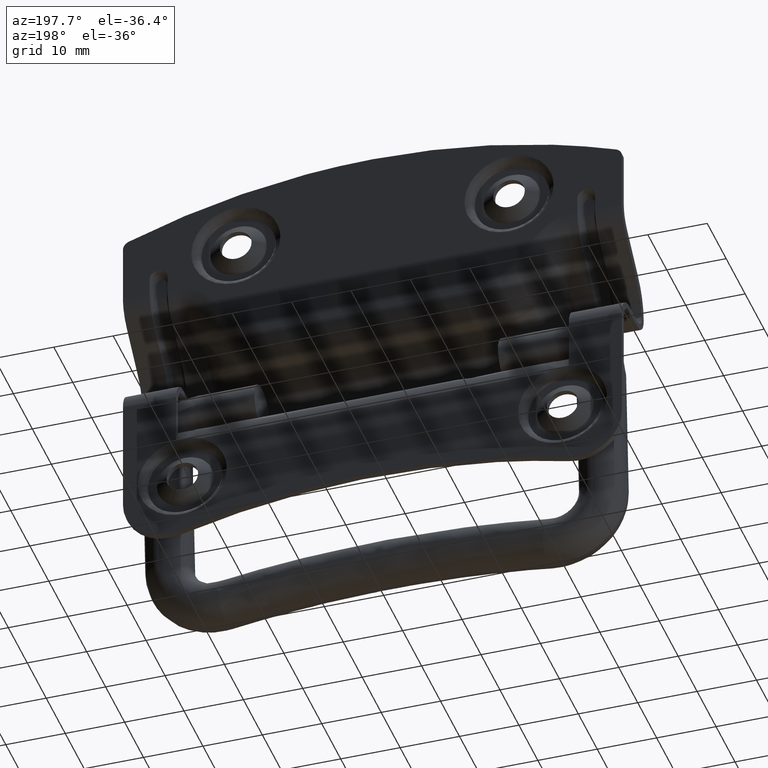
[diagram: clean part render]
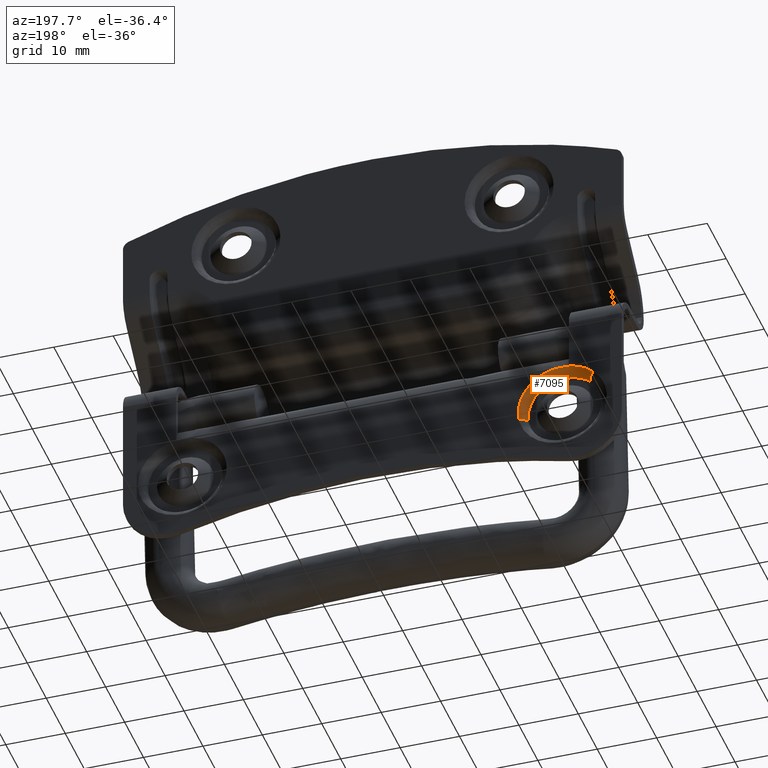
[diagram: same view with one face highlighted and labeled with its STEP entity id]
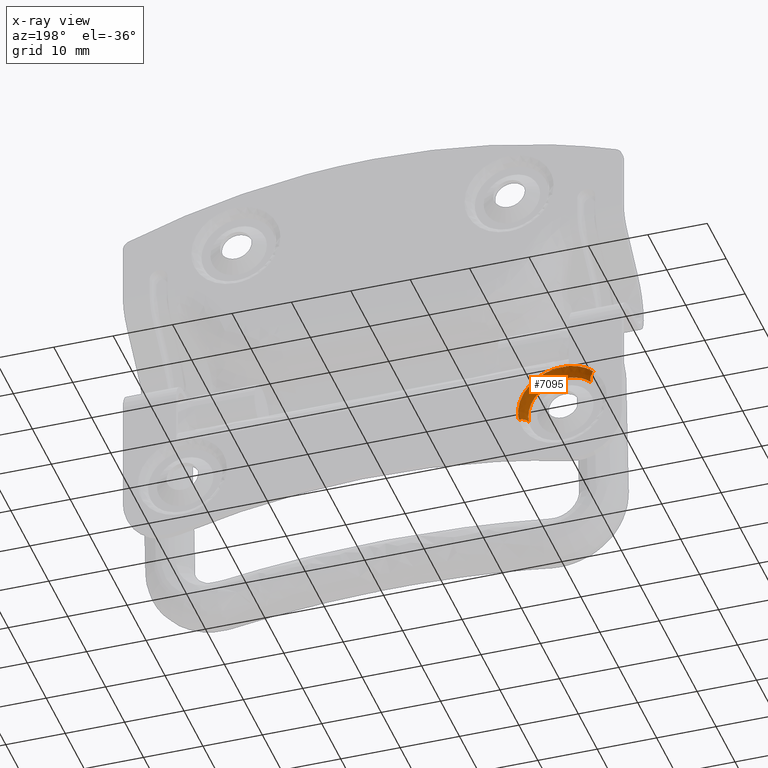
[diagram: x-ray of the same camera — body ghosted, the highlighted face saturated]
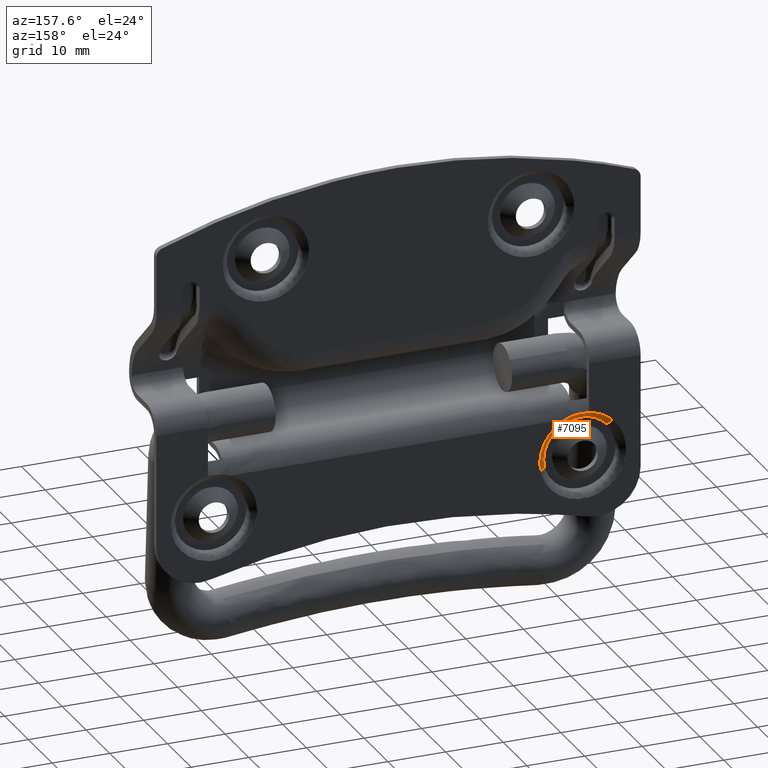
[diagram: same view with one face highlighted and labeled with its STEP entity id]
A machine part, auxiliary view. The second image highlights one B-rep face of the part: STEP entity #7095.
The next image is the same camera in x-ray: the body ghosted, the highlighted face saturated — about 0% of this face is hidden behind the body in this view.
A second angle (auxiliary view) of the same face is appended — the face is thin or edge-on in the first view.
In plain terms, the highlighted face is a freeform B-spline surface patch.
Its self-contained STEP definition (entity closure, byte-faithful):
#6912=CARTESIAN_POINT('',(-24.632845621366091,5.914919945475825,-16.405359859550099));
#6913=VERTEX_POINT('',#6912);
#6929=CARTESIAN_POINT('',(-37.178915370767783,5.914919945315424,-9.575164929543892));
#6930=VERTEX_POINT('',#6929);
#6946=CARTESIAN_POINT('',(-36.315762810485502,4.435900001354776,-10.479304106265239));
#6947=VERTEX_POINT('',#6946);
#6948=CARTESIAN_POINT('',(-36.315762810485502,4.435900001354776,-10.479304106265239));
#6949=CARTESIAN_POINT('',(-36.315720168328667,4.589391813209155,-10.479348773275870));
#6950=CARTESIAN_POINT('',(-36.350901108970362,4.918287471114459,-10.442497273121941));
#6951=CARTESIAN_POINT('',(-36.514856710660091,5.372036648385160,-10.270756274425070));
#6952=CARTESIAN_POINT('',(-36.799451008683953,5.746326690615313,-9.972648076460184));
#6953=CARTESIAN_POINT('',(-37.044499772226857,5.882219675471842,-9.715963224301136));
#6954=CARTESIAN_POINT('',(-37.178915370767783,5.914919945315424,-9.575164929543892));
#6955=B_SPLINE_CURVE_WITH_KNOTS('',3,(#6948,#6949,#6950,#6951,#6952,#6953,#6954),.UNSPECIFIED.,.F.,.U.,(4,1,1,1,4),(0.000000189239142,0.460510338932862,0.986811992729496,1.513105706225366,2.105190923824322),.UNSPECIFIED.);
#6956=EDGE_CURVE('',#6947,#6930,#6955,.T.);
#6977=CARTESIAN_POINT('',(-25.860704682956360,4.435900001323768,-16.171133216216671));
#6978=VERTEX_POINT('',#6977);
#6990=CARTESIAN_POINT('',(-25.860704682956360,4.435900001323768,-16.171133216216671));
#6991=CARTESIAN_POINT('',(-25.860765646050272,4.589391271219705,-16.171121586877540));
#6992=CARTESIAN_POINT('',(-25.810718736969751,4.918289026658638,-16.180668545380129));
#6993=CARTESIAN_POINT('',(-25.577487979155890,5.372037079751955,-16.225159691981609));
#6994=CARTESIAN_POINT('',(-25.172645010150131,5.746324193683385,-16.302387618769011));
#6995=CARTESIAN_POINT('',(-24.824055228194979,5.882222592349684,-16.368884676206392));
#6996=CARTESIAN_POINT('',(-24.632845621366091,5.914919945475825,-16.405359859550099));
#6997=B_SPLINE_CURVE_WITH_KNOTS('',3,(#6990,#6991,#6992,#6993,#6994,#6995,#6996),.UNSPECIFIED.,.F.,.U.,(4,1,1,1,4),(0.000000189238145,0.460510339186954,0.986811993275168,1.513105707062535,2.105190924989198),.UNSPECIFIED.);
#6998=EDGE_CURVE('',#6978,#6913,#6997,.T.);
#7003=CARTESIAN_POINT('',(-25.857705618612989,4.340243792528366,-16.171705318279347));
#7004=CARTESIAN_POINT('',(-24.686000300333642,4.340243792528366,-10.029410936892340));
#7005=CARTESIAN_POINT('',(-30.828294681720653,4.340243792528366,-8.857705618612993));
#7006=CARTESIAN_POINT('',(-33.989847395076964,4.340243792528365,-8.254607183688483));
#7007=CARTESIAN_POINT('',(-36.317870363880246,4.340243792528367,-10.477095055030754));
#7008=CARTESIAN_POINT('',(-25.947980053278631,5.778444487857737,-16.154484548867373));
#7009=CARTESIAN_POINT('',(-24.793495504411279,5.778444487857738,-10.102464602146005));
#7010=CARTESIAN_POINT('',(-30.845515451132641,5.778444487857737,-8.947980053278640));
#7011=CARTESIAN_POINT('',(-33.960602240496655,5.778444487857737,-8.353745467411176));
#7012=CARTESIAN_POINT('',(-36.254409825870212,5.778444487857739,-10.543569024137616));
#7013=CARTESIAN_POINT('',(-24.539997426747824,5.927820483786098,-16.423071599424610));
#7014=CARTESIAN_POINT('',(-23.116925827323229,5.927820483786098,-8.963069026172439));
#7015=CARTESIAN_POINT('',(-30.576928400575387,5.927820483786098,-7.539997426747828));
#7016=CARTESIAN_POINT('',(-34.416729932814029,5.927820483786097,-6.807516109978824));
#7017=CARTESIAN_POINT('',(-37.244184343089415,5.927820483786100,-9.506794947781970));
#7025=(BOUNDED_SURFACE()B_SPLINE_SURFACE(2,2,((#7003,#7008,#7013),(#7004,#7009,#7014),(#7005,#7010,#7015),(#7006,#7011,#7016),(#7007,#7012,#7017)),.UNSPECIFIED.,.F.,.F.,.U.)B_SPLINE_SURFACE_WITH_KNOTS((3,2,3),(3,3),(0.0,12.583016786126310,20.132825657792100),(0.0,2.415230692067961),.UNSPECIFIED.)GEOMETRIC_REPRESENTATION_ITEM()RATIONAL_B_SPLINE_SURFACE(((0.913290657816406,0.659685551412517,0.916338605696395),(0.645794017336303,0.466468126854578,0.647949241950947),(0.913290657816406,0.659685551412517,0.916338605696395),(0.752792699038812,0.543755115104403,0.755305013044730),(0.784892260181774,0.566941180254050,0.787511700860343)))REPRESENTATION_ITEM('')SURFACE());
#7026=CARTESIAN_POINT('',(-33.048946506377312,5.914919945774930,-7.573714843425590));
#7027=VERTEX_POINT('',#7026);
#7028=CARTESIAN_POINT('',(-33.048946506377312,5.914919945774930,-7.573714843425590));
#7029=CARTESIAN_POINT('',(-33.866919504682173,5.914919945775091,-7.688705711707335));
#7030=CARTESIAN_POINT('',(-35.369590016868727,5.914919945689944,-8.163730089542790));
#7031=CARTESIAN_POINT('',(-36.651956766108121,5.914919945454409,-9.071699026620728));
#7032=CARTESIAN_POINT('',(-37.178915370767783,5.914919945315424,-9.575164929543892));
#7033=B_SPLINE_CURVE_WITH_KNOTS('',3,(#7028,#7029,#7030,#7031,#7032),.UNSPECIFIED.,.F.,.U.,(4,1,4),(0.000000013631080,2.477885632900081,4.664255893747167),.UNSPECIFIED.);
#7034=EDGE_CURVE('',#7027,#6930,#7033,.T.);
#7035=ORIENTED_EDGE('',*,*,#7034,.F.);
#7036=CARTESIAN_POINT('',(-33.048946506377312,5.906784877310770,-7.618260141626931));
#7037=VERTEX_POINT('',#7036);
#7038=CARTESIAN_POINT('',(-33.048946506377312,5.906784877310770,-7.618260141626931));
#7039=CARTESIAN_POINT('',(-33.048946506377312,5.914919945774930,-7.573714843425590));
#7040=QUASI_UNIFORM_CURVE('',1,(#7038,#7039),.UNSPECIFIED.,.F.,.U.);
#7041=EDGE_CURVE('',#7037,#7027,#7040,.T.);
#7042=ORIENTED_EDGE('',*,*,#7041,.F.);
#7043=CARTESIAN_POINT('',(-30.318813533841801,5.914919945775150,-7.690854217760660));
#7044=VERTEX_POINT('',#7043);
#7045=CARTESIAN_POINT('',(-33.048946506377312,5.906784877310770,-7.618260141626931));
#7046=CARTESIAN_POINT('',(-32.592484547297147,5.901905832247375,-7.578043153305856));
#7047=CARTESIAN_POINT('',(-32.136747337691830,5.899870402981132,-7.564193395329371));
#7048=CARTESIAN_POINT('',(-31.226707017670559,5.903077945637793,-7.588483410861237));
#7049=CARTESIAN_POINT('',(-30.772403784997699,5.908314946215486,-7.626619350555399));
#7050=CARTESIAN_POINT('',(-30.318813533841801,5.914919945775145,-7.690854217760613));
#7051=B_SPLINE_CURVE_WITH_KNOTS('',3,(#7045,#7046,#7047,#7048,#7049,#7050),.UNSPECIFIED.,.F.,.U.,(4,2,4),(0.0,0.500000000000000,1.0),.UNSPECIFIED.);
#7052=EDGE_CURVE('',#7037,#7044,#7051,.T.);
#7053=ORIENTED_EDGE('',*,*,#7052,.T.);
#7054=CARTESIAN_POINT('',(-24.632845621366091,5.914919945475825,-16.405359859550099));
#7055=CARTESIAN_POINT('',(-24.514824131167579,5.914919945521420,-15.787665314346929));
#7056=CARTESIAN_POINT('',(-24.450822339617091,5.914919945590884,-14.763467539579350));
#7057=CARTESIAN_POINT('',(-24.678552375996400,5.914919945684418,-13.157545566802140));
#7058=CARTESIAN_POINT('',(-25.199353271353520,5.914919945756015,-11.678189891224269));
#7059=CARTESIAN_POINT('',(-26.227388111086789,5.914919945811485,-10.081672404947010));
#7060=CARTESIAN_POINT('',(-27.544126380389539,5.914919945828101,-8.876422660744995));
#7061=CARTESIAN_POINT('',(-28.995162983947569,5.914919945811771,-8.081176193294676));
#7062=CARTESIAN_POINT('',(-29.881049678234881,5.914919945789110,-7.791500926193912));
#7063=CARTESIAN_POINT('',(-30.318813533841801,5.914919945775150,-7.690854217760660));
#7064=B_SPLINE_CURVE_WITH_KNOTS('',3,(#7054,#7055,#7056,#7057,#7058,#7059,#7060,#7061,#7062,#7063),.UNSPECIFIED.,.F.,.U.,(4,1,1,1,1,1,1,4),(0.000000205772682,1.886556356009438,3.054468484577935,4.851217356712083,6.558065883934622,8.714212466550732,10.151607047969330,11.499164150019880),.UNSPECIFIED.);
#7065=EDGE_CURVE('',#6913,#7044,#7064,.T.);
#7066=ORIENTED_EDGE('',*,*,#7065,.F.);
#7067=ORIENTED_EDGE('',*,*,#6998,.F.);
#7068=CARTESIAN_POINT('',(-32.0,4.435900000000000,-8.749999999999998));
#7069=VERTEX_POINT('',#7068);
#7070=CARTESIAN_POINT('',(-25.860704682956360,4.435900001323768,-16.171133216216671));
#7071=CARTESIAN_POINT('',(-25.731572269612521,4.435900001106146,-15.496110568022200));
#7072=CARTESIAN_POINT('',(-25.700663453141360,4.435900000707534,-14.161304117033660));
#7073=CARTESIAN_POINT('',(-26.210217947142951,4.435900000279969,-12.469655869757920));
#7074=CARTESIAN_POINT('',(-27.048611718805230,4.435899999991772,-11.092671422661761));
#7075=CARTESIAN_POINT('',(-28.003640152811400,4.435899999842055,-10.128252305712129));
#7076=CARTESIAN_POINT('',(-29.116792243409389,4.435899999788489,-9.414245882077308));
#7077=CARTESIAN_POINT('',(-30.396612291294211,4.435899999816393,-8.895813920924331));
#7078=CARTESIAN_POINT('',(-31.398654437669961,4.435899999914865,-8.749740381535107));
#7079=CARTESIAN_POINT('',(-32.0,4.435900000000000,-8.749999999999998));
#7080=B_SPLINE_CURVE_WITH_KNOTS('',3,(#7070,#7071,#7072,#7073,#7074,#7075,#7076,#7077,#7078,#7079),.UNSPECIFIED.,.F.,.U.,(4,1,1,1,1,1,1,4),(0.000000294268492,2.061683601348797,3.951602091888320,5.240137381657858,6.872269899161791,7.989031040889753,9.191705539691830,10.995660830687889),.UNSPECIFIED.);
#7081=EDGE_CURVE('',#6978,#7069,#7080,.T.);
#7082=ORIENTED_EDGE('',*,*,#7081,.T.);
#7083=CARTESIAN_POINT('',(-32.0,4.435900000000000,-8.749999999999998));
#7084=CARTESIAN_POINT('',(-32.769284957647990,4.435899999999458,-8.749304014274845));
#7085=CARTESIAN_POINT('',(-33.984512076272900,4.435900000178143,-8.977398479623410));
#7086=CARTESIAN_POINT('',(-35.403720584105152,4.435900000752074,-9.709971769779827));
#7087=CARTESIAN_POINT('',(-36.046581762399803,4.435900001153423,-10.222296958322580));
#7088=CARTESIAN_POINT('',(-36.315762810485502,4.435900001354776,-10.479304106265239));
#7089=B_SPLINE_CURVE_WITH_KNOTS('',3,(#7083,#7084,#7085,#7086,#7087,#7088),.UNSPECIFIED.,.F.,.U.,(4,1,1,4),(0.000000054523437,2.307521788167169,3.647318602971178,4.763844114169055),.UNSPECIFIED.);
#7090=EDGE_CURVE('',#7069,#6947,#7089,.T.);
#7091=ORIENTED_EDGE('',*,*,#7090,.T.);
#7092=ORIENTED_EDGE('',*,*,#6956,.T.);
#7093=EDGE_LOOP('',(#7035,#7042,#7053,#7066,#7067,#7082,#7091,#7092));
#7094=FACE_OUTER_BOUND('',#7093,.T.);
#7095=ADVANCED_FACE('',(#7094),#7025,.T.);